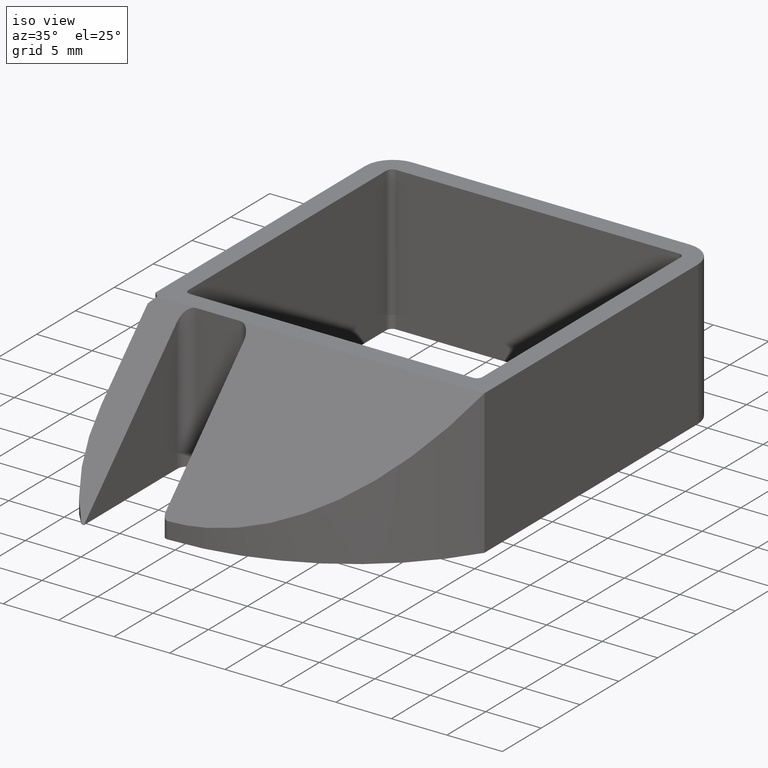
[diagram: clean part render]
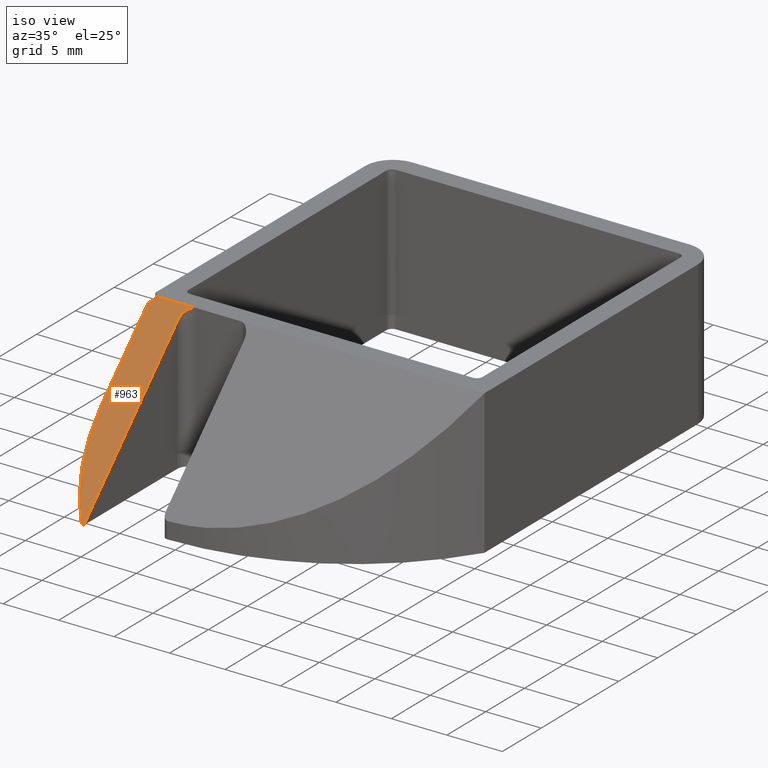
[diagram: same view with one face highlighted and labeled with its STEP entity id]
A machine part, iso view. The second image highlights one B-rep face of the part: STEP entity #963.
In plain terms, the highlighted planar face has unit normal (0, -0.7071, 0.7071).
Its self-contained STEP definition (entity closure, byte-faithful):
#55=CARTESIAN_POINT('',(-29.499999999999996,-13.750000000000002,12.999999999999773));
#56=VERTEX_POINT('',#55);
#86=CARTESIAN_POINT('',(-29.999999999999883,-14.253249249289185,12.496750750710589));
#87=VERTEX_POINT('',#86);
#94=CARTESIAN_POINT('',(-29.499999999999996,-13.750000000000002,12.999999999999773));
#95=DIRECTION('',(-0.574857111362513,-0.578592819483597,-0.578592819483589));
#96=VECTOR('',#95,0.869781359779647);
#97=LINE('',#94,#96);
#98=EDGE_CURVE('',#56,#87,#97,.T.);
#117=CARTESIAN_POINT('',(-29.999999999999883,-20.250000000000000,6.499999999999886));
#118=VERTEX_POINT('',#117);
#125=CARTESIAN_POINT('',(-29.999999999999883,-14.253249249289185,12.496750750710596));
#126=DIRECTION('',(0.0,-0.707106781186554,-0.707106781186541));
#127=VECTOR('',#126,8.480686241826200);
#128=LINE('',#125,#127);
#129=EDGE_CURVE('',#87,#118,#128,.T.);
#140=CARTESIAN_POINT('',(-27.224949798994313,-26.750000000000000,-8.881784E-016));
#141=VERTEX_POINT('',#140);
#142=CARTESIAN_POINT('',(-20.999999999999886,-20.250000000000000,6.499999999999887));
#143=DIRECTION('',(-8.659561E-017,0.707106781186541,-0.707106781186554));
#144=DIRECTION('',(-8.659561E-017,0.707106781186554,0.707106781186541));
#145=AXIS2_PLACEMENT_3D('',#142,#143,#144);
#146=ELLIPSE('',#145,12.727922061357745,9.0);
#147=EDGE_CURVE('',#141,#118,#146,.T.);
#165=CARTESIAN_POINT('',(-26.999999999963844,-26.749999999997499,-8.881784E-016));
#166=VERTEX_POINT('',#165);
#175=CARTESIAN_POINT('',(-26.999999999963848,-14.749999999974081,12.000000000025807));
#176=VERTEX_POINT('',#175);
#183=CARTESIAN_POINT('',(-26.999999999963844,-26.749999999997499,-8.881784E-016));
#184=DIRECTION('',(0.0,0.707106781186479,0.707106781186616));
#185=VECTOR('',#184,16.970562748511899);
#186=LINE('',#183,#185);
#187=EDGE_CURVE('',#166,#176,#186,.T.);
#206=CARTESIAN_POINT('',(-25.999999999963848,-13.749999999974078,12.999999999999773));
#207=VERTEX_POINT('',#206);
#214=CARTESIAN_POINT('',(-25.999999999963851,-14.749999999974079,12.000000000025807));
#215=DIRECTION('',(8.659561E-017,-0.707106781186541,0.707106781186554));
#216=DIRECTION('',(-8.659561E-017,0.707106781186554,0.707106781186541));
#217=AXIS2_PLACEMENT_3D('',#214,#215,#216);
#218=ELLIPSE('',#217,1.414213562373083,1.0);
#219=EDGE_CURVE('',#207,#176,#218,.T.);
#777=CARTESIAN_POINT('',(-27.224949798994313,-26.750000000000000,-8.881784E-016));
#778=DIRECTION('',(1.0,1.111853E-011,1.361527E-027));
#779=VECTOR('',#778,0.224949799030469);
#780=LINE('',#777,#779);
#781=EDGE_CURVE('',#141,#166,#780,.T.);
#835=CARTESIAN_POINT('',(-29.499999999999996,-13.750000000000002,12.999999999999773));
#836=DIRECTION('',(1.0,0.0,0.0));
#837=VECTOR('',#836,3.500000000036152);
#838=LINE('',#835,#837);
#839=EDGE_CURVE('',#56,#207,#838,.T.);
#949=CARTESIAN_POINT('',(-29.999999999999883,-13.750000000000002,12.999999999999773));
#950=DIRECTION('',(8.659561E-017,-0.707106781186541,0.707106781186554));
#951=DIRECTION('',(8.659561E-017,-0.707106781186554,-0.707106781186541));
#952=AXIS2_PLACEMENT_3D('',#949,#950,#951);
#953=PLANE('',#952);
#954=ORIENTED_EDGE('',*,*,#98,.T.);
#955=ORIENTED_EDGE('',*,*,#129,.T.);
#956=ORIENTED_EDGE('',*,*,#147,.F.);
#957=ORIENTED_EDGE('',*,*,#781,.T.);
#958=ORIENTED_EDGE('',*,*,#187,.T.);
#959=ORIENTED_EDGE('',*,*,#219,.F.);
#960=ORIENTED_EDGE('',*,*,#839,.F.);
#961=EDGE_LOOP('',(#954,#955,#956,#957,#958,#959,#960));
#962=FACE_OUTER_BOUND('',#961,.T.);
#963=ADVANCED_FACE('',(#962),#953,.T.);